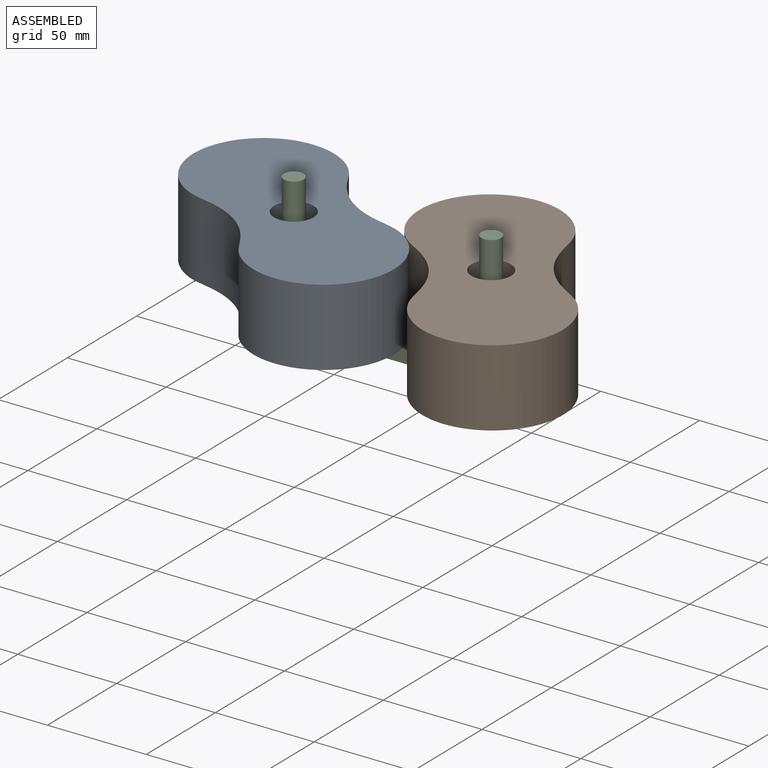
[diagram: assembled view]
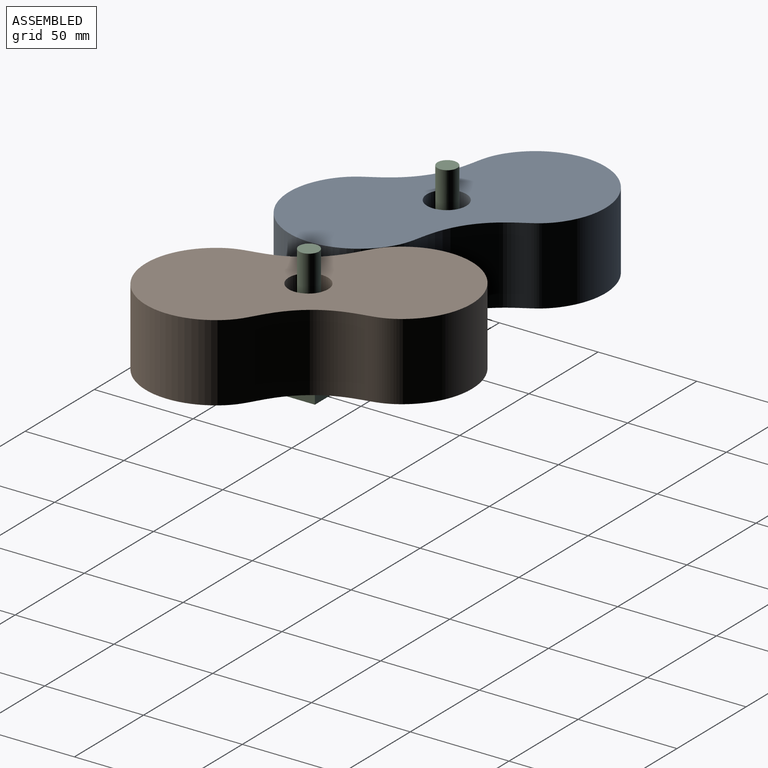
[diagram: assembled view, second angle]
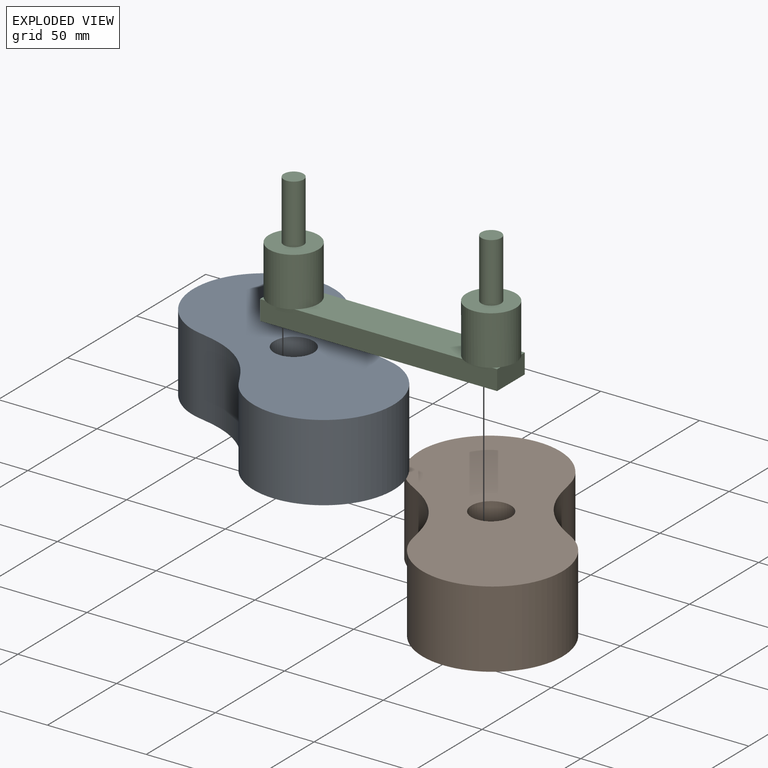
[diagram: exploded view]
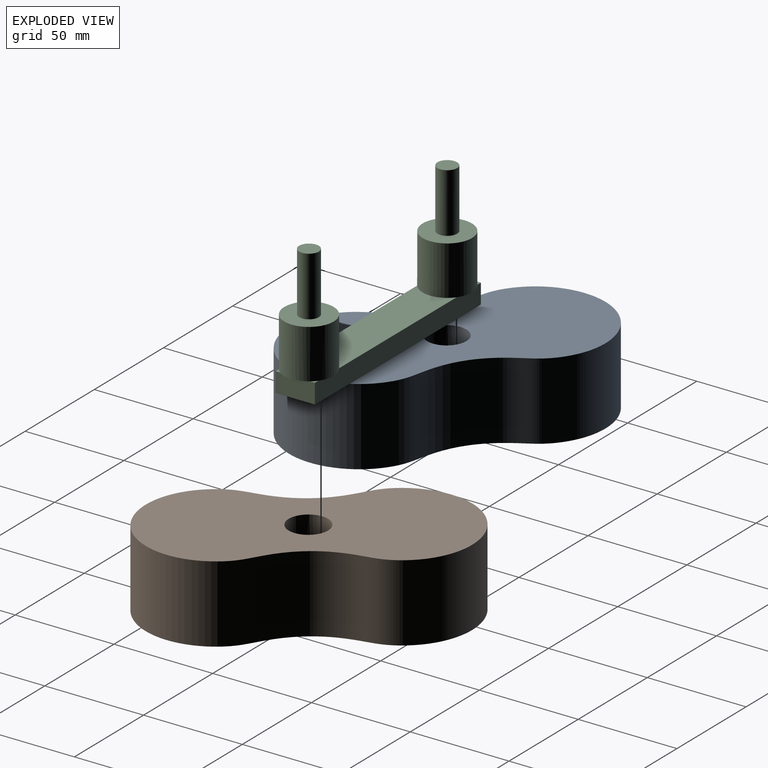
[diagram: exploded view, second angle]
ASSEMBLY  parts=3 mates=2
PART A: 248 faces, bbox 109.5x137.8x39 mm
  f0: cylinder r=12.5mm len=25mm, axis (0,0,1), area 1955.6mm2, adj f1,f2
  f1: plane 137.78x109.53mm, normal (0,0,-1), area 8159.9mm2, adj f0,f3,f4,f5,f6,f7,f8,f9
  f2: plane 25.46x25mm, normal (0,0,-1), area 412.3mm2, adj f0,f244
  f3: plane 39x3.23mm, normal (0.84,0.54,0), area 149.2mm2, adj f1,f4,f243,f245
  f4: plane 39x1.22mm, normal (0.87,0.49,0), area 54.6mm2, adj f1,f3,f5,f245
  f5: plane 39x1.24mm, normal (0.89,0.46,0), area 54.6mm2, adj f1,f4,f6,f245
  f6: plane 39x1.26mm, normal (0.9,0.43,0), area 54.6mm2, adj f1,f5,f7,f245
  f7: plane 39x1.28mm, normal (0.91,0.4,0), area 54.6mm2, adj f1,f6,f8,f245
  f8: plane 39x1.3mm, normal (0.93,0.38,0), area 54.6mm2, adj f1,f7,f9,f245
  f9: plane 39x1.31mm, normal (0.94,0.35,0), area 54.6mm2, adj f1,f8,f10,f245
  f10: plane 39x1.57mm, normal (0.95,0.32,0), area 64.4mm2, adj f1,f9,f11,f245
  f11: plane 39x1.58mm, normal (0.96,0.29,0), area 64.4mm2, adj f1,f10,f12,f245
  f12: plane 39x1.6mm, normal (0.97,0.25,0), area 64.4mm2, adj f1,f11,f13,f245
  f13: plane 39x1.61mm, normal (0.97,0.22,0), area 64.4mm2, adj f1,f12,f14,f245
  f14: plane 39x1.65mm, normal (0.98,0.19,0), area 65.7mm2, adj f1,f13,f15,f245
  f15: plane 39x1.66mm, normal (0.99,0.17,0), area 65.7mm2, adj f1,f14,f16,f245
  f16: plane 39x1.67mm, normal (0.99,0.14,0), area 65.7mm2, adj f1,f15,f17,f245
  f17: plane 39x1.67mm, normal (0.99,0.12,0), area 65.7mm2, adj f1,f16,f18,f245
  f18: plane 39x1.67mm, normal (0.99,0.11,0), area 65.7mm2, adj f1,f17,f19,f245
  f19: plane 39x1.67mm, normal (0.99,0.11,0), area 65.7mm2, adj f1,f18,f20,f245
  f20: plane 39x1.67mm, normal (0.99,0.12,0), area 65.7mm2, adj f1,f19,f21,f245
  f21: plane 39x1.09mm, normal (0.99,0.13,0), area 42.9mm2, adj f1,f20,f22,f245
  f22: plane 39x1.09mm, normal (0.99,0.16,0), area 42.9mm2, adj f1,f21,f23,f245
  f23: plane 39x1.08mm, normal (0.98,0.18,0), area 42.9mm2, adj f1,f22,f24,f245
  f24: plane 39x1.07mm, normal (0.98,0.22,0), area 42.9mm2, adj f1,f23,f25,f245
  f25: plane 39x1.07mm, normal (0.97,0.25,0), area 42.9mm2, adj f1,f24,f26,f245
  f26: plane 39x1.05mm, normal (0.96,0.29,0), area 42.9mm2, adj f1,f25,f27,f245
  f27: plane 39x1.22mm, normal (0.94,0.33,0), area 50.6mm2, adj f1,f26,f28,f245
  f28: plane 39x1.2mm, normal (0.93,0.37,0), area 50.6mm2, adj f1,f27,f29,f245
  f29: plane 39x1.18mm, normal (0.91,0.41,0), area 50.6mm2, adj f1,f28,f30,f245
  f30: plane 39x1.16mm, normal (0.89,0.45,0), area 50.7mm2, adj f1,f29,f31,f245
  f31: plane 39x1.17mm, normal (0.88,0.48,0), area 51.9mm2, adj f1,f30,f32,f245
  f32: plane 39x1.15mm, normal (0.86,0.51,0), area 52.1mm2, adj f1,f31,f33,f245
  f33: plane 39x1.12mm, normal (0.84,0.55,0), area 52.2mm2, adj f1,f32,f34,f245
  f34: plane 39x1.09mm, normal (0.82,0.58,0), area 52.3mm2, adj f1,f33,f35,f245
  f35: plane 39x1.07mm, normal (0.8,0.61,0), area 52.3mm2, adj f1,f34,f36,f245
  f36: plane 39x1.04mm, normal (0.77,0.64,0), area 52.3mm2, adj f1,f35,f37,f245
  f37: plane 39x1mm, normal (0.75,0.66,0), area 52.3mm2, adj f1,f36,f38,f245
  f38: plane 39x0.92mm, normal (0.72,0.69,0), area 49.3mm2, adj f1,f37,f39,f245
  f39: plane 39x0.9mm, normal (0.7,0.72,0), area 49.2mm2, adj f1,f38,f40,f245
  f40: plane 39x0.93mm, normal (0.67,0.74,0), area 49.1mm2, adj f1,f39,f41,f245
  f41: plane 39x0.96mm, normal (0.65,0.76,0), area 48.9mm2, adj f1,f40,f42,f245
  f42: plane 39x0.98mm, normal (0.62,0.79,0), area 48.8mm2, adj f1,f41,f43,f245
  f43: plane 39x1.01mm, normal (0.59,0.81,0), area 48.8mm2, adj f1,f42,f44,f245
  f44: plane 39x1.22mm, normal (0.56,0.83,0), area 57.5mm2, adj f1,f43,f45,f245
  f45: plane 39x1.26mm, normal (0.52,0.85,0), area 57.5mm2, adj f1,f44,f46,f245
  f46: plane 39x1.29mm, normal (0.49,0.87,0), area 57.5mm2, adj f1,f45,f47,f245
  f47: plane 39x1.32mm, normal (0.45,0.89,0), area 57.5mm2, adj f1,f46,f48,f245
  f48: plane 39x1.2mm, normal (0.42,0.91,0), area 51.3mm2, adj f1,f47,f49,f245
  f49: plane 39x1.22mm, normal (0.38,0.92,0), area 51.3mm2, adj f1,f48,f50,f245
  f50: plane 39x1.23mm, normal (0.35,0.94,0), area 51.3mm2, adj f1,f49,f51,f245
  f51: plane 39x1.25mm, normal (0.31,0.95,0), area 51.3mm2, adj f1,f50,f52,f245
  f52: plane 39x1.26mm, normal (0.28,0.96,0), area 51.3mm2, adj f1,f51,f53,f245
  f53: plane 39x1.28mm, normal (0.24,0.97,0), area 51.3mm2, adj f1,f52,f54,f245
  f54: plane 39x1.29mm, normal (0.2,0.98,0), area 51.3mm2, adj f1,f53,f55,f245
  f55: plane 39x1.3mm, normal (0.17,0.99,0), area 51.3mm2, adj f1,f54,f56,f245
  f56: plane 39x1.24mm, normal (0.13,0.99,0), area 48.8mm2, adj f1,f55,f57,f245
  f57: plane 39x1.24mm, normal (0.1,1,0), area 48.8mm2, adj f1,f56,f58,f245
  f58: plane 39x1.25mm, normal (0.06,1,0), area 48.8mm2, adj f1,f57,f59,f245
  f59: plane 39x1.25mm, normal (0.03,1,0), area 48.8mm2, adj f1,f58,f60,f245
  f60: plane 39x1.25mm, normal (-0.01,1,0), area 48.8mm2, adj f1,f59,f61,f245
  f61: plane 39x1.25mm, normal (-0.04,1,0), area 48.8mm2, adj f1,f60,f62,f245
  f62: plane 39x1.47mm, normal (-0.08,1,0), area 57.5mm2, adj f1,f61,f63,f245
  f63: plane 39x1.46mm, normal (-0.12,0.99,0), area 57.5mm2, adj f1,f62,f64,f245
  f64: plane 39x1.45mm, normal (-0.16,0.99,0), area 57.5mm2, adj f1,f63,f65,f245
  f65: plane 39x1.44mm, normal (-0.2,0.98,0), area 57.5mm2, adj f1,f64,f66,f245
  f66: plane 39x1.43mm, normal (-0.25,0.97,0), area 57.5mm2, adj f1,f65,f67,f245
  f67: plane 39x1.41mm, normal (-0.29,0.96,0), area 57.5mm2, adj f1,f66,f68,f245
  f68: plane 39x1.39mm, normal (-0.32,0.95,0), area 57.5mm2, adj f1,f67,f69,f245
  f69: plane 39x1.37mm, normal (-0.36,0.93,0), area 57.5mm2, adj f1,f68,f70,f245
  f70: plane 39x1.06mm, normal (-0.4,0.92,0), area 45.1mm2, adj f1,f69,f71,f245
  f71: plane 39x1.05mm, normal (-0.43,0.9,0), area 45.1mm2, adj f1,f70,f72,f245
  f72: plane 39x1.03mm, normal (-0.46,0.89,0), area 45.2mm2, adj f1,f71,f73,f245
  f73: plane 39x1.01mm, normal (-0.49,0.87,0), area 45.1mm2, adj f1,f72,f74,f245
  f74: plane 39x0.99mm, normal (-0.51,0.86,0), area 45.1mm2, adj f1,f73,f75,f245
  f75: plane 39x0.97mm, normal (-0.54,0.84,0), area 45.2mm2, adj f1,f74,f76,f245
  f76: plane 39x0.95mm, normal (-0.57,0.82,0), area 45.1mm2, adj f1,f75,f77,f245
  f77: plane 39x0.93mm, normal (-0.6,0.8,0), area 45.1mm2, adj f1,f76,f78,f245
  f78: plane 39x1.15mm, normal (-0.62,0.78,0), area 57.5mm2, adj f1,f77,f79,f245
  f79: plane 39x1.11mm, normal (-0.66,0.75,0), area 57.5mm2, adj f1,f78,f80,f245
  f80: plane 39x1.07mm, normal (-0.69,0.73,0), area 57.5mm2, adj f1,f79,f81,f245
  f81: plane 39x1.06mm, normal (-0.72,0.7,0), area 57.5mm2, adj f1,f80,f82,f245
  f82: plane 39x1.1mm, normal (-0.75,0.67,0), area 57.5mm2, adj f1,f81,f83,f245
  f83: plane 39x1.14mm, normal (-0.77,0.64,0), area 57.5mm2, adj f1,f82,f84,f245
  f84: plane 39x1.18mm, normal (-0.8,0.6,0), area 57.5mm2, adj f1,f83,f85,f245
  f85: plane 39x1.21mm, normal (-0.82,0.57,0), area 57.5mm2, adj f1,f84,f86,f245
  f86: plane 39x1.05mm, normal (-0.84,0.54,0), area 48.8mm2, adj f1,f85,f87,f245
  f87: plane 39x1.08mm, normal (-0.86,0.51,0), area 48.8mm2, adj f1,f86,f88,f245
  f88: plane 39x1.1mm, normal (-0.88,0.48,0), area 48.8mm2, adj f1,f87,f89,f245
  f89: plane 39x1.12mm, normal (-0.9,0.45,0), area 48.8mm2, adj f1,f88,f90,f245
  f90: plane 39x1.14mm, normal (-0.91,0.41,0), area 48.8mm2, adj f1,f89,f91,f245
  f91: plane 39x1.16mm, normal (-0.92,0.38,0), area 48.8mm2, adj f1,f90,f92,f245
  f92: plane 39x1.23mm, normal (-0.94,0.35,0), area 51.3mm2, adj f1,f91,f93,f245
  f93: plane 39x1.25mm, normal (-0.95,0.31,0), area 51.3mm2, adj f1,f92,f94,f245
  f94: plane 39x1.26mm, normal (-0.96,0.28,0), area 51.3mm2, adj f1,f93,f95,f245
  f95: plane 39x1.28mm, normal (-0.97,0.24,0), area 51.3mm2, adj f1,f94,f96,f245
  f96: plane 39x1.29mm, normal (-0.98,0.21,0), area 51.3mm2, adj f1,f95,f97,f245
  f97: plane 39x1.3mm, normal (-0.99,0.17,0), area 51.3mm2, adj f1,f96,f98,f245
  f98: plane 39x1.3mm, normal (-0.99,0.13,0), area 51.3mm2, adj f1,f97,f99,f245
  f99: plane 39x1.31mm, normal (-1,0.1,0), area 51.3mm2, adj f1,f98,f100,f245
  f100: plane 39x1.47mm, normal (-1,0.06,0), area 57.5mm2, adj f1,f99,f101,f245
  f101: plane 39x1.47mm, normal (-1,0.01,0), area 57.5mm2, adj f1,f100,f102,f245
  f102: plane 39x1.47mm, normal (-1,-0.03,0), area 57.5mm2, adj f1,f101,f103,f245
  f103: plane 39x1.47mm, normal (-1,-0.07,0), area 57.5mm2, adj f1,f102,f104,f245
  f104: plane 39x1.24mm, normal (-0.99,-0.11,0), area 48.8mm2, adj f1,f103,f105,f245
  f105: plane 39x1.24mm, normal (-0.99,-0.14,0), area 48.8mm2, adj f1,f104,f106,f245
  f106: plane 39x1.24mm, normal (-0.98,-0.18,0), area 48.9mm2, adj f1,f105,f107,f245
  f107: plane 39x1.23mm, normal (-0.98,-0.21,0), area 49.1mm2, adj f1,f106,f108,f245
  f108: plane 39x1.22mm, normal (-0.97,-0.25,0), area 49.2mm2, adj f1,f107,f109,f245
  f109: plane 39x1.21mm, normal (-0.96,-0.28,0), area 49.3mm2, adj f1,f108,f110,f245
  f110: plane 39x1.27mm, normal (-0.95,-0.32,0), area 52.3mm2, adj f1,f109,f111,f245
  f111: plane 39x1.26mm, normal (-0.94,-0.35,0), area 52.3mm2, adj f1,f110,f112,f245
  f112: plane 39x1.24mm, normal (-0.92,-0.39,0), area 52.3mm2, adj f1,f111,f113,f245
  f113: plane 39x1.22mm, normal (-0.91,-0.42,0), area 52.3mm2, adj f1,f112,f114,f245
  f114: plane 39x1.19mm, normal (-0.89,-0.45,0), area 52.2mm2, adj f1,f113,f115,f245
  f115: plane 39x1.17mm, normal (-0.87,-0.49,0), area 52.1mm2, adj f1,f114,f116,f245
  f116: plane 39x1.14mm, normal (-0.86,-0.52,0), area 51.9mm2, adj f1,f115,f117,f245
  f117: plane 39x1.09mm, normal (-0.83,-0.55,0), area 50.7mm2, adj f1,f116,f118,f245
  f118: plane 39x1.05mm, normal (-0.81,-0.58,0), area 50.6mm2, adj f1,f117,f119,f245
  f119: plane 39x1.02mm, normal (-0.79,-0.62,0), area 50.6mm2, adj f1,f118,f120,f245
  f120: plane 39x0.98mm, normal (-0.76,-0.65,0), area 50.6mm2, adj f1,f119,f121,f245
  f121: plane 39x0.8mm, normal (-0.73,-0.69,0), area 42.9mm2, adj f1,f120,f122,f245
  f122: plane 39x0.78mm, normal (-0.7,-0.71,0), area 42.9mm2, adj f1,f121,f123,f245
  f123: plane 39x0.81mm, normal (-0.68,-0.74,0), area 42.9mm2, adj f1,f122,f124,f245
  f124: plane 39x0.84mm, normal (-0.65,-0.76,0), area 42.9mm2, adj f1,f123,f125,f245
  f125: plane 39x0.86mm, normal (-0.63,-0.78,0), area 42.9mm2, adj f1,f124,f126,f245
  f126: plane 39x0.87mm, normal (-0.61,-0.79,0), area 42.9mm2, adj f1,f125,f127,f245
  f127: plane 39x1.35mm, normal (-0.6,-0.8,0), area 65.7mm2, adj f1,f126,f128,f245
  f128: plane 39x1.36mm, normal (-0.59,-0.81,0), area 65.7mm2, adj f1,f127,f129,f245
  f129: plane 39x1.36mm, normal (-0.59,-0.8,0), area 65.7mm2, adj f1,f128,f130,f245
  f130: plane 39x1.34mm, normal (-0.6,-0.8,0), area 65.7mm2, adj f1,f129,f131,f245
  f131: plane 39x1.32mm, normal (-0.62,-0.79,0), area 65.7mm2, adj f1,f130,f132,f245
  f132: plane 39x1.3mm, normal (-0.64,-0.77,0), area 65.7mm2, adj f1,f131,f133,f245
  f133: plane 39x1.27mm, normal (-0.66,-0.75,0), area 65.7mm2, adj f1,f132,f134,f245
  f134: plane 39x1.21mm, normal (-0.68,-0.73,0), area 64.4mm2, adj f1,f133,f135,f245
  f135: plane 39x1.17mm, normal (-0.7,-0.71,0), area 64.4mm2, adj f1,f134,f136,f245
  f136: plane 39x1.2mm, normal (-0.73,-0.69,0), area 64.4mm2, adj f1,f135,f137,f245
  f137: plane 39x1.24mm, normal (-0.75,-0.66,0), area 64.4mm2, adj f1,f136,f138,f245
  f138: plane 39x1.08mm, normal (-0.77,-0.64,0), area 54.6mm2, adj f1,f137,f139,f245
  f139: plane 39x1.1mm, normal (-0.79,-0.61,0), area 54.6mm2, adj f1,f138,f140,f245
  f140: plane 39x1.13mm, normal (-0.81,-0.59,0), area 54.6mm2, adj f1,f139,f141,f245
  f141: plane 39x1.16mm, normal (-0.82,-0.57,0), area 54.6mm2, adj f1,f140,f142,f245
  f142: plane 39x1.18mm, normal (-0.84,-0.54,0), area 54.6mm2, adj f1,f141,f143,f245
  f143: plane 39x1.2mm, normal (-0.86,-0.51,0), area 54.6mm2, adj f1,f142,f144,f245
  f144: plane 39x1.22mm, normal (-0.87,-0.49,0), area 54.6mm2, adj f1,f143,f145,f245
  f145: plane 39x1.24mm, normal (-0.89,-0.46,0), area 54.6mm2, adj f1,f144,f146,f245
  f146: plane 39x1.26mm, normal (-0.9,-0.43,0), area 54.6mm2, adj f1,f145,f147,f245
  f147: plane 39x1.28mm, normal (-0.91,-0.4,0), area 54.6mm2, adj f1,f146,f148,f245
  f148: plane 39x1.3mm, normal (-0.93,-0.38,0), area 54.6mm2, adj f1,f147,f149,f245
  f149: plane 39x1.31mm, normal (-0.94,-0.35,0), area 54.6mm2, adj f1,f148,f150,f245
  f150: plane 39x1.57mm, normal (-0.95,-0.32,0), area 64.4mm2, adj f1,f149,f151,f245
  f151: plane 39x1.58mm, normal (-0.96,-0.29,0), area 64.4mm2, adj f1,f150,f152,f245
  f152: plane 39x1.6mm, normal (-0.97,-0.25,0), area 64.4mm2, adj f1,f151,f153,f245
  f153: plane 39x1.61mm, normal (-0.97,-0.22,0), area 64.4mm2, adj f1,f152,f154,f245
  f154: plane 39x1.65mm, normal (-0.98,-0.19,0), area 65.7mm2, adj f1,f153,f155,f245
  f155: plane 39x1.66mm, normal (-0.99,-0.17,0), area 65.7mm2, adj f1,f154,f156,f245
  f156: plane 39x1.67mm, normal (-0.99,-0.14,0), area 65.7mm2, adj f1,f155,f157,f245
  f157: plane 39x1.67mm, normal (-0.99,-0.12,0), area 65.7mm2, adj f1,f156,f158,f245
  f158: plane 39x1.67mm, normal (-0.99,-0.11,0), area 65.7mm2, adj f1,f157,f159,f245
  f159: plane 39x1.67mm, normal (-0.99,-0.11,0), area 65.7mm2, adj f1,f158,f160,f245
  f160: plane 39x1.67mm, normal (-0.99,-0.12,0), area 65.7mm2, adj f1,f159,f161,f245
  f161: plane 39x1.09mm, normal (-0.99,-0.13,0), area 42.9mm2, adj f1,f160,f162,f245
  f162: plane 39x1.09mm, normal (-0.99,-0.16,0), area 42.9mm2, adj f1,f161,f163,f245
  f163: plane 39x1.08mm, normal (-0.98,-0.18,0), area 42.9mm2, adj f1,f162,f164,f245
  f164: plane 39x1.07mm, normal (-0.98,-0.22,0), area 42.9mm2, adj f1,f163,f165,f245
  f165: plane 39x1.07mm, normal (-0.97,-0.25,0), area 42.9mm2, adj f1,f164,f166,f245
  f166: plane 39x1.05mm, normal (-0.96,-0.29,0), area 42.9mm2, adj f1,f165,f167,f245
  f167: plane 39x1.22mm, normal (-0.94,-0.33,0), area 50.6mm2, adj f1,f166,f168,f245
  f168: plane 39x1.2mm, normal (-0.93,-0.37,0), area 50.6mm2, adj f1,f167,f169,f245
  f169: plane 39x1.18mm, normal (-0.91,-0.41,0), area 50.6mm2, adj f1,f168,f170,f245
  f170: plane 39x1.16mm, normal (-0.89,-0.45,0), area 50.7mm2, adj f1,f169,f171,f245
  f171: plane 39x1.17mm, normal (-0.88,-0.48,0), area 51.9mm2, adj f1,f170,f172,f245
  f172: plane 39x1.15mm, normal (-0.86,-0.51,0), area 52.1mm2, adj f1,f171,f173,f245
  f173: plane 39x1.12mm, normal (-0.84,-0.55,0), area 52.2mm2, adj f1,f172,f174,f245
  f174: plane 39x1.09mm, normal (-0.82,-0.58,0), area 52.3mm2, adj f1,f173,f175,f245
  f175: plane 39x1.07mm, normal (-0.8,-0.61,0), area 52.3mm2, adj f1,f174,f176,f245
  f176: plane 39x1.04mm, normal (-0.77,-0.64,0), area 52.3mm2, adj f1,f175,f177,f245
  f177: plane 39x1mm, normal (-0.75,-0.66,0), area 52.3mm2, adj f1,f176,f178,f245
  f178: plane 39x0.92mm, normal (-0.72,-0.69,0), area 49.3mm2, adj f1,f177,f179,f245
  f179: plane 39x0.9mm, normal (-0.7,-0.72,0), area 49.2mm2, adj f1,f178,f180,f245
  f180: plane 39x0.93mm, normal (-0.67,-0.74,0), area 49.1mm2, adj f1,f179,f181,f245
  f181: plane 39x0.96mm, normal (-0.65,-0.76,0), area 48.9mm2, adj f1,f180,f182,f245
  f182: plane 39x0.98mm, normal (-0.62,-0.79,0), area 48.8mm2, adj f1,f181,f183,f245
  f183: plane 39x1.01mm, normal (-0.59,-0.81,0), area 48.8mm2, adj f1,f182,f184,f245
  f184: plane 39x1.22mm, normal (-0.56,-0.83,0), area 57.5mm2, adj f1,f183,f185,f245
  f185: plane 39x1.26mm, normal (-0.52,-0.85,0), area 57.5mm2, adj f1,f184,f186,f245
  f186: plane 39x1.29mm, normal (-0.49,-0.87,0), area 57.5mm2, adj f1,f185,f187,f245
  f187: plane 39x1.32mm, normal (-0.45,-0.89,0), area 57.5mm2, adj f1,f186,f188,f245
  f188: plane 39x1.2mm, normal (-0.42,-0.91,0), area 51.3mm2, adj f1,f187,f189,f245
  f189: plane 39x1.22mm, normal (-0.38,-0.92,0), area 51.3mm2, adj f1,f188,f190,f245
  f190: plane 39x1.23mm, normal (-0.35,-0.94,0), area 51.3mm2, adj f1,f189,f191,f245
  f191: plane 39x1.25mm, normal (-0.31,-0.95,0), area 51.3mm2, adj f1,f190,f192,f245
  f192: plane 39x1.26mm, normal (-0.28,-0.96,0), area 51.3mm2, adj f1,f191,f193,f245
  f193: plane 39x1.28mm, normal (-0.24,-0.97,0), area 51.3mm2, adj f1,f192,f194,f245
  f194: plane 39x1.29mm, normal (-0.2,-0.98,0), area 51.3mm2, adj f1,f193,f195,f245
  f195: plane 39x1.3mm, normal (-0.17,-0.99,0), area 51.3mm2, adj f1,f194,f196,f245
  f196: plane 39x1.24mm, normal (-0.13,-0.99,0), area 48.8mm2, adj f1,f195,f197,f245
  f197: plane 39x1.24mm, normal (-0.1,-1,0), area 48.8mm2, adj f1,f196,f198,f245
  f198: plane 39x1.25mm, normal (-0.06,-1,0), area 48.8mm2, adj f1,f197,f199,f245
  f199: plane 39x1.25mm, normal (-0.03,-1,0), area 48.8mm2, adj f1,f198,f200,f245
  f200: plane 39x1.25mm, normal (0.01,-1,0), area 48.8mm2, adj f1,f199,f201,f245
  f201: plane 39x1.25mm, normal (0.04,-1,0), area 48.8mm2, adj f1,f200,f202,f245
  f202: plane 39x1.47mm, normal (0.08,-1,0), area 57.5mm2, adj f1,f201,f203,f245
  f203: plane 39x1.46mm, normal (0.12,-0.99,0), area 57.5mm2, adj f1,f202,f204,f245
  f204: plane 39x1.45mm, normal (0.16,-0.99,0), area 57.5mm2, adj f1,f203,f205,f245
  f205: plane 39x1.44mm, normal (0.2,-0.98,0), area 57.5mm2, adj f1,f204,f206,f245
  f206: plane 39x1.43mm, normal (0.25,-0.97,0), area 57.5mm2, adj f1,f205,f207,f245
  f207: plane 39x1.41mm, normal (0.29,-0.96,0), area 57.5mm2, adj f1,f206,f208,f245
  f208: plane 39x1.39mm, normal (0.32,-0.95,0), area 57.5mm2, adj f1,f207,f209,f245
  f209: plane 39x1.37mm, normal (0.36,-0.93,0), area 57.5mm2, adj f1,f208,f210,f245
  f210: plane 39x1.06mm, normal (0.4,-0.92,0), area 45.1mm2, adj f1,f209,f211,f245
  f211: plane 39x1.05mm, normal (0.43,-0.9,0), area 45.1mm2, adj f1,f210,f212,f245
  f212: plane 39x1.03mm, normal (0.46,-0.89,0), area 45.2mm2, adj f1,f211,f213,f245
  f213: plane 39x1.01mm, normal (0.49,-0.87,0), area 45.1mm2, adj f1,f212,f214,f245
  f214: plane 39x2.52mm, normal (0.54,-0.84,0), area 116.6mm2, adj f1,f213,f215,f245
  f215: plane 39x2.38mm, normal (0.61,-0.8,0), area 116.6mm2, adj f1,f214,f216,f245
  f216: plane 39x2.22mm, normal (0.67,-0.74,0), area 116.6mm2, adj f1,f215,f217,f245
  f217: plane 39x2.18mm, normal (0.73,-0.68,0), area 116.6mm2, adj f1,f216,f218,f245
  f218: plane 39x2.35mm, normal (0.78,-0.62,0), area 116.6mm2, adj f1,f217,f219,f245
  f219: plane 39x2.49mm, normal (0.83,-0.55,0), area 116.6mm2, adj f1,f218,f220,f245
  f220: plane 39x2.62mm, normal (0.88,-0.48,0), area 116.6mm2, adj f1,f219,f221,f245
  f221: plane 39x2.73mm, normal (0.91,-0.4,0), area 116.6mm2, adj f1,f220,f222,f245
  f222: plane 39x2.83mm, normal (0.95,-0.33,0), area 116.6mm2, adj f1,f221,f223,f245
  f223: plane 39x2.9mm, normal (0.97,-0.24,0), area 116.6mm2, adj f1,f222,f224,f245
  f224: plane 39x2.95mm, normal (0.99,-0.16,0), area 116.6mm2, adj f1,f223,f225,f245
  f225: plane 39x2.98mm, normal (1,-0.08,0), area 116.6mm2, adj f1,f224,f226,f245
  f226: plane 39x2.99mm, normal (1,0.01,0), area 116.6mm2, adj f1,f225,f227,f245
  f227: plane 39x2.98mm, normal (1,0.09,0), area 116.6mm2, adj f1,f226,f228,f245
  f228: plane 39x2.95mm, normal (0.98,0.17,0), area 117mm2, adj f1,f227,f229,f245
  f229: plane 39x2.92mm, normal (0.97,0.26,0), area 117.7mm2, adj f1,f228,f230,f245
  f230: plane 39x2.51mm, normal (0.94,0.33,0), area 103.9mm2, adj f1,f229,f231,f245
  f231: plane 39x2.44mm, normal (0.92,0.4,0), area 103.9mm2, adj f1,f230,f232,f245
  f232: plane 39x2.35mm, normal (0.88,0.47,0), area 103.7mm2, adj f1,f231,f233,f245
  f233: plane 39x2.24mm, normal (0.85,0.53,0), area 103.1mm2, adj f1,f232,f234,f245
  f234: plane 39x2.1mm, normal (0.8,0.6,0), area 102.6mm2, adj f1,f233,f235,f245
  f235: plane 39x1.95mm, normal (0.74,0.67,0), area 102.6mm2, adj f1,f234,f236,f245
  f236: plane 39x1.93mm, normal (0.68,0.74,0), area 102.6mm2, adj f1,f235,f237,f245
  f237: plane 39x2.05mm, normal (0.62,0.78,0), area 102.6mm2, adj f1,f236,f238,f245
  f238: plane 39x3.08mm, normal (0.59,0.8,0), area 149.3mm2, adj f1,f237,f239,f245
  f239: plane 39x3.05mm, normal (0.6,0.8,0), area 149.2mm2, adj f1,f238,f240,f245
  f240: plane 39x2.94mm, normal (0.64,0.77,0), area 149.2mm2, adj f1,f239,f241,f245
  f241: plane 39x2.76mm, normal (0.69,0.72,0), area 149.2mm2, adj f1,f240,f242,f245
  f242: plane 39x2.85mm, normal (0.74,0.67,0), area 149.2mm2, adj f1,f241,f243,f245
  f243: plane 39x3.05mm, normal (0.8,0.61,0), area 149.2mm2, adj f1,f3,f242,f245
  f244: cylinder r=5mm len=10mm, axis (0,0,-1), area 128.8mm2, adj f2,f246
  f245: plane 137.78x109.53mm, normal (0,0,1), area 8336.7mm2, adj f3,f4,f5,f6,f7,f8,f9,f10
  f246: plane 20.37x20mm, normal (0,0,1), area 235.6mm2, adj f244,f247
  f247: cylinder r=10mm len=20mm, axis (0,0,-1), area 628.3mm2, adj f245,f246
PART B: same geometry as A
PART C: 24 faces, bbox 125x25.5x64.9 mm
  f0: plane 10x10mm, normal (0,0,1), area 78.5mm2, adj f1
  f1: cylinder r=5mm len=30mm, axis (0,0,1), area 942.5mm2, adj f0,f5
  f2: plane 15x2.5mm, normal (0,0,-1), area 25.5mm2, adj f11,f12
  f3: plane 2.5x2.5mm, normal (0,0,1), area 2.8mm2, adj f9,f11,f12
  f4: plane 15x2.5mm, normal (0,0,-1), area 25.5mm2, adj f9,f12
  f5: plane 25x25mm, normal (0,0,1), area 412.3mm2, adj f1,f12
  f6: plane 120x20mm, normal (0,0,-1), area 2400mm2, adj f9,f10,f11,f13
  f7: plane 15x2.5mm, normal (0,0,-1), area 25.5mm2, adj f12,f13
  f8: plane 2.5x2.5mm, normal (0,0,1), area 2.8mm2, adj f9,f12,f13
  f9: plane 20x10mm, normal (1,0,0), area 200mm2, adj f3,f4,f6,f8,f11,f13
  f10: plane 20x10mm, normal (-1,0,0), area 200mm2, adj f6,f11,f13,f15,f16,f17
  f11: plane 120x10mm, normal (0,-1,0), area 1200mm2, adj f2,f3,f6,f9,f10,f17,f18,f19
  f12: cylinder r=12.5mm len=25mm, axis (0,0,1), area 1955.6mm2, adj f2,f3,f4,f5,f7,f8,f19
  f13: plane 120x10mm, normal (0,1,0), area 1200mm2, adj f6,f7,f8,f9,f10,f14,f15,f19
  f14: plane 15x2.66mm, normal (0,0,-1), area 25.5mm2, adj f13,f20
  f15: plane 2.5x2.5mm, normal (0,0,1), area 2.8mm2, adj f10,f13,f20
  f16: plane 15x2.5mm, normal (0,0,-1), area 25.5mm2, adj f10,f20
  f17: plane 2.5x2.5mm, normal (0,0,1), area 2.8mm2, adj f10,f11,f20
  f18: plane 15x2.66mm, normal (0,0,-1), area 25.5mm2, adj f11,f20
  f19: plane 85x20mm, normal (0,0,1), area 1560.2mm2, adj f11,f12,f13,f20
  f20: cylinder r=12.5mm len=25mm, axis (0,0,1), area 1955.6mm2, adj f14,f15,f16,f17,f18,f19,f21
  f21: plane 25.46x25mm, normal (0,0,1), area 412.3mm2, adj f20,f23
  f22: plane 10.19x10mm, normal (0,0,1), area 78.5mm2, adj f23
  f23: cylinder r=5mm len=30mm, axis (0,0,1), area 942.5mm2, adj f21,f22
PLACE A rot(axis=(0,0,1),23.8deg) t=(-174.33,21.89,112.67)mm
PLACE B rot(axis=(0,0,1),5.9deg) t=(-109.16,61.33,112.67)mm
PLACE C t=(-16.79,151.99,102.67)mm fixed
MATE revolute A.f1 <-> C.f20  axis (0,0,-1) through (-66.79,151.99,112.67)mm
MATE revolute B.f1 <-> C.f1  axis (0,0,-1) through (33.21,151.99,112.67)mm
